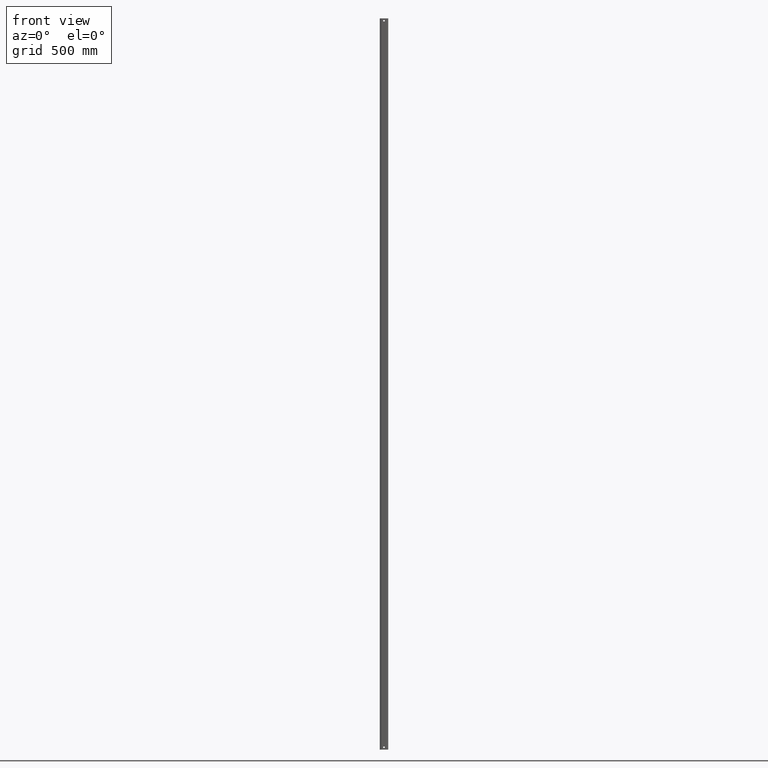
[diagram: clean part render]
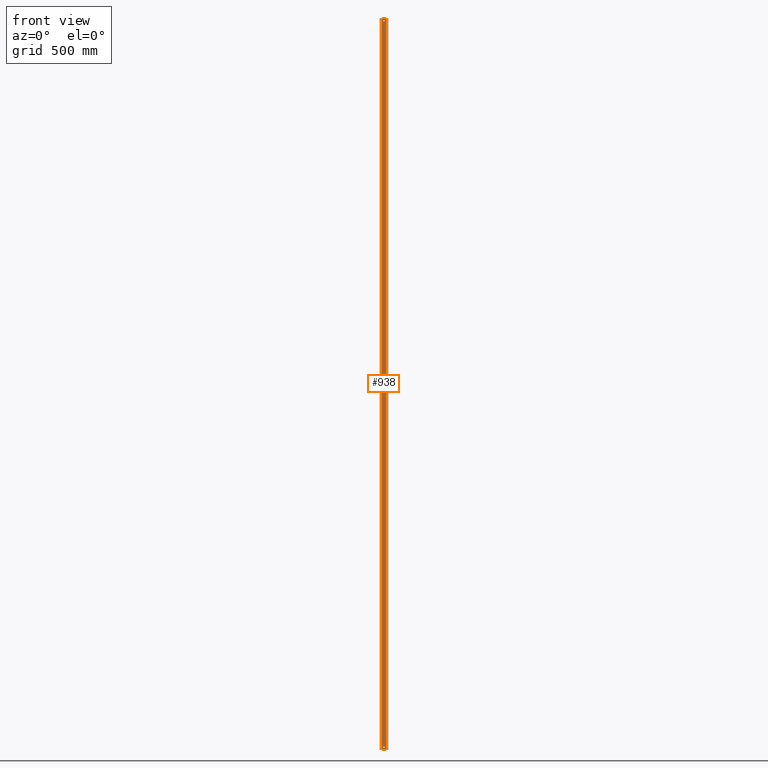
[diagram: same view with one face highlighted and labeled with its STEP entity id]
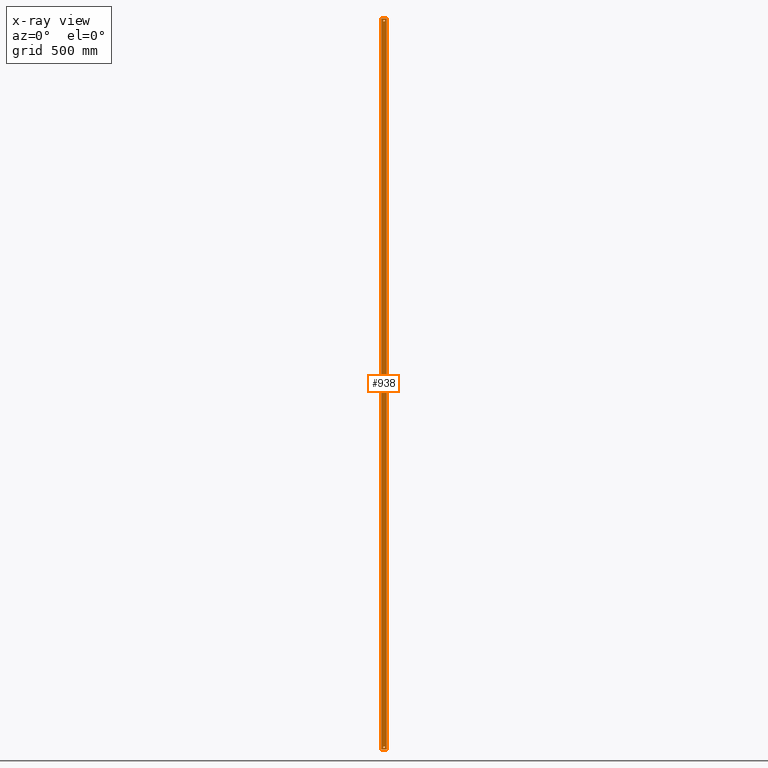
[diagram: x-ray of the same camera — body ghosted, the highlighted face saturated]
A machine part, front view. The second image highlights one B-rep face of the part: STEP entity #938.
The next image is the same camera in x-ray: the body ghosted, the highlighted face saturated — about 0% of this face is hidden behind the body in this view.
In plain terms, the highlighted planar face has unit normal (0, 1, 0).
Its self-contained STEP definition (entity closure, byte-faithful):
#5 = CARTESIAN_POINT ( 'NONE',  ( 0.0000000000000000000, 0.0000000000000000000, 3000.000000000000000 ) ) ;
#7 = CARTESIAN_POINT ( 'NONE',  ( 10.80000000000001500, 0.0000000000000000000, 13.25000000000001100 ) ) ;
#19 = CARTESIAN_POINT ( 'NONE',  ( 10.80000000000001500, 0.0000000000000000000, 2993.250000000000000 ) ) ;
#27 = CARTESIAN_POINT ( 'NONE',  ( 21.60000000000014700, 0.0000000000000000000, 0.0000000000000000000 ) ) ;
#32 = CARTESIAN_POINT ( 'NONE',  ( 0.0000000000000000000, 0.0000000000000000000, 0.0000000000000000000 ) ) ;
#46 = CARTESIAN_POINT ( 'NONE',  ( 21.60000000000014700, 0.0000000000000000000, 3000.000000000000000 ) ) ;
#81 = CARTESIAN_POINT ( 'NONE',  ( 10.80000000000001500, 0.0000000000000000000, 6.750000000000008000 ) ) ;
#99 = CARTESIAN_POINT ( 'NONE',  ( 21.60000000000014700, 0.0000000000000000000, 3000.000000000000000 ) ) ;
#100 = DIRECTION ( 'NONE',  ( -0.0000000000000000000, -0.0000000000000000000, -1.000000000000000000 ) ) ;
#101 = DIRECTION ( 'NONE',  ( -0.0000000000000000000, -0.0000000000000000000, -1.000000000000000000 ) ) ;
#102 = LINE ( 'NONE', #99, #711 ) ;
#108 = LINE ( 'NONE', #111, #696 ) ;
#110 = CARTESIAN_POINT ( 'NONE',  ( 10.49461781091140900, 0.0000000000000000000, 3000.000000000000000 ) ) ;
#111 = CARTESIAN_POINT ( 'NONE',  ( 0.0000000000000000000, 0.0000000000000000000, 3000.000000000000000 ) ) ;
#113 = LINE ( 'NONE', #110, #695 ) ;
#116 = CARTESIAN_POINT ( 'NONE',  ( 10.80000000000001500, 0.0000000000000000000, 2990.000000000000000 ) ) ;
#118 = DIRECTION ( 'NONE',  ( 0.0000000000000000000, 0.0000000000000000000, 1.000000000000000000 ) ) ;
#121 = DIRECTION ( 'NONE',  ( 1.000000000000000000, 0.0000000000000000000, 0.0000000000000000000 ) ) ;
#140 = CARTESIAN_POINT ( 'NONE',  ( 10.80000000000001500, 0.0000000000000000000, 10.00000000000000900 ) ) ;
#141 = DIRECTION ( 'NONE',  ( 0.0000000000000000000, 1.000000000000000000, 0.0000000000000000000 ) ) ;
#142 = DIRECTION ( 'NONE',  ( 0.0000000000000000000, 1.000000000000000000, 0.0000000000000000000 ) ) ;
#146 = DIRECTION ( 'NONE',  ( 0.0000000000000000000, 0.0000000000000000000, 1.000000000000000000 ) ) ;
#200 = EDGE_LOOP ( 'NONE', ( #386, #404 ) ) ;
#202 = EDGE_LOOP ( 'NONE', ( #327, #382 ) ) ;
#231 = EDGE_LOOP ( 'NONE', ( #377, #350, #359, #395 ) ) ;
#234 = VERTEX_POINT ( 'NONE', #7 ) ;
#236 = VERTEX_POINT ( 'NONE', #5 ) ;
#240 = VERTEX_POINT ( 'NONE', #336 ) ;
#242 = VERTEX_POINT ( 'NONE', #27 ) ;
#243 = VERTEX_POINT ( 'NONE', #19 ) ;
#245 = VERTEX_POINT ( 'NONE', #32 ) ;
#279 = VERTEX_POINT ( 'NONE', #46 ) ;
#288 = VERTEX_POINT ( 'NONE', #81 ) ;
#327 = ORIENTED_EDGE ( 'NONE', *, *, #909, .T. ) ;
#336 = CARTESIAN_POINT ( 'NONE',  ( 10.80000000000001500, 0.0000000000000000000, 2986.750000000000500 ) ) ;
#350 = ORIENTED_EDGE ( 'NONE', *, *, #910, .F. ) ;
#359 = ORIENTED_EDGE ( 'NONE', *, *, #900, .F. ) ;
#377 = ORIENTED_EDGE ( 'NONE', *, *, #932, .T. ) ;
#382 = ORIENTED_EDGE ( 'NONE', *, *, #957, .T. ) ;
#386 = ORIENTED_EDGE ( 'NONE', *, *, #902, .T. ) ;
#395 = ORIENTED_EDGE ( 'NONE', *, *, #905, .T. ) ;
#404 = ORIENTED_EDGE ( 'NONE', *, *, #945, .T. ) ;
#435 = AXIS2_PLACEMENT_3D ( 'NONE', #582, #598, #607 ) ;
#451 = CIRCLE ( 'NONE', #435, 3.249999999999975100 ) ;
#458 = VECTOR ( 'NONE', #539, 1000.000000000000000 ) ;
#462 = AXIS2_PLACEMENT_3D ( 'NONE', #527, #549, #542 ) ;
#464 = CIRCLE ( 'NONE', #465, 3.250000000000001300 ) ;
#465 = AXIS2_PLACEMENT_3D ( 'NONE', #577, #612, #611 ) ;
#524 = PLANE ( 'NONE',  #462 ) ;
#527 = CARTESIAN_POINT ( 'NONE',  ( 10.49461781091140900, 0.0000000000000000000, 3000.000000000000000 ) ) ;
#533 = FACE_OUTER_BOUND ( 'NONE', #231, .T. ) ;
#539 = DIRECTION ( 'NONE',  ( 1.000000000000000000, 0.0000000000000000000, 0.0000000000000000000 ) ) ;
#542 = DIRECTION ( 'NONE',  ( 0.0000000000000000000, -0.0000000000000000000, 1.000000000000000000 ) ) ;
#549 = DIRECTION ( 'NONE',  ( 0.0000000000000000000, 1.000000000000000000, 0.0000000000000000000 ) ) ;
#554 = FACE_BOUND ( 'NONE', #200, .T. ) ;
#559 = FACE_BOUND ( 'NONE', #202, .T. ) ;
#564 = CARTESIAN_POINT ( 'NONE',  ( 10.49461781091140900, 0.0000000000000000000, 0.0000000000000000000 ) ) ;
#567 = LINE ( 'NONE', #564, #458 ) ;
#577 = CARTESIAN_POINT ( 'NONE',  ( 10.80000000000001500, 0.0000000000000000000, 10.00000000000000900 ) ) ;
#582 = CARTESIAN_POINT ( 'NONE',  ( 10.80000000000001500, 0.0000000000000000000, 2990.000000000000000 ) ) ;
#598 = DIRECTION ( 'NONE',  ( 0.0000000000000000000, 1.000000000000000000, 0.0000000000000000000 ) ) ;
#607 = DIRECTION ( 'NONE',  ( 0.0000000000000000000, 0.0000000000000000000, 1.000000000000000000 ) ) ;
#611 = DIRECTION ( 'NONE',  ( 0.0000000000000000000, 0.0000000000000000000, 1.000000000000000000 ) ) ;
#612 = DIRECTION ( 'NONE',  ( 0.0000000000000000000, 1.000000000000000000, 0.0000000000000000000 ) ) ;
#684 = AXIS2_PLACEMENT_3D ( 'NONE', #140, #142, #146 ) ;
#693 = AXIS2_PLACEMENT_3D ( 'NONE', #116, #141, #118 ) ;
#695 = VECTOR ( 'NONE', #121, 1000.000000000000000 ) ;
#696 = VECTOR ( 'NONE', #101, 1000.000000000000000 ) ;
#708 = CIRCLE ( 'NONE', #684, 3.250000000000001300 ) ;
#711 = VECTOR ( 'NONE', #100, 1000.000000000000000 ) ;
#713 = CIRCLE ( 'NONE', #693, 3.249999999999975100 ) ;
#900 = EDGE_CURVE ( 'NONE', #236, #279, #113, .T. ) ;
#902 = EDGE_CURVE ( 'NONE', #243, #240, #713, .T. ) ;
#905 = EDGE_CURVE ( 'NONE', #236, #245, #108, .T. ) ;
#909 = EDGE_CURVE ( 'NONE', #234, #288, #708, .T. ) ;
#910 = EDGE_CURVE ( 'NONE', #279, #242, #102, .T. ) ;
#932 = EDGE_CURVE ( 'NONE', #245, #242, #567, .T. ) ;
#938 = ADVANCED_FACE ( 'NONE', ( #559, #554, #533 ), #524, .F. ) ;
#945 = EDGE_CURVE ( 'NONE', #240, #243, #451, .T. ) ;
#957 = EDGE_CURVE ( 'NONE', #288, #234, #464, .T. ) ;